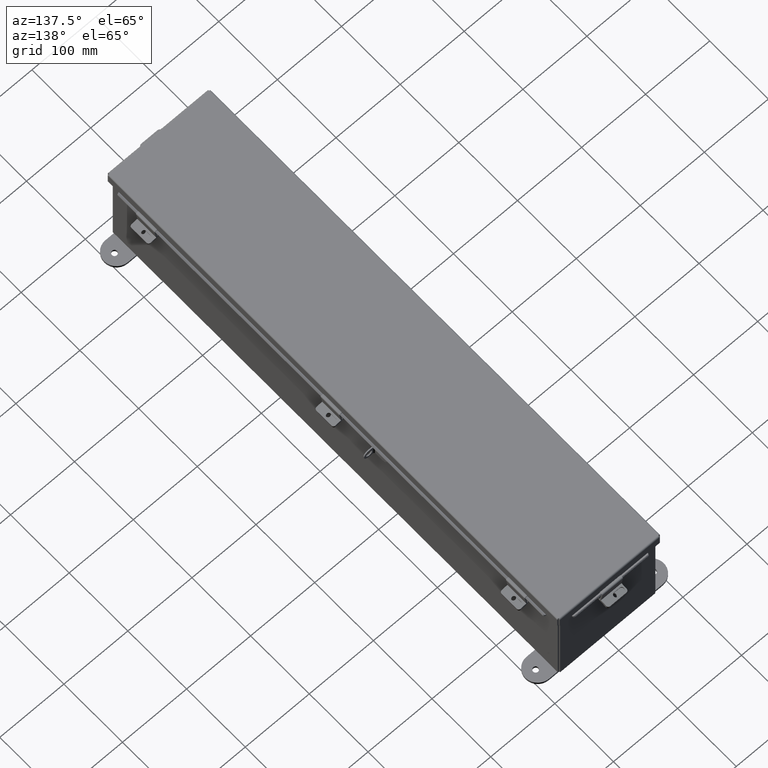
[diagram: clean part render]
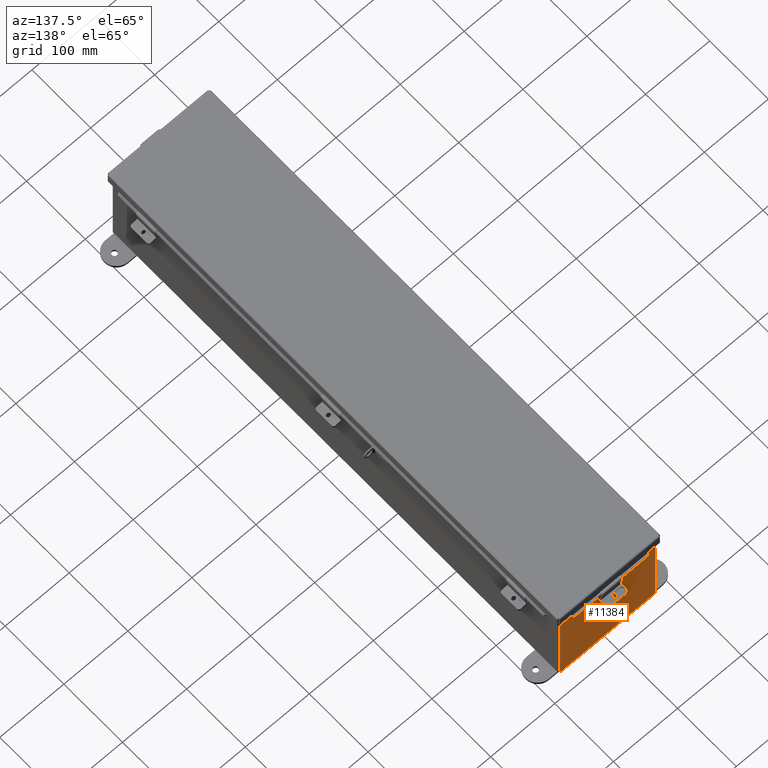
[diagram: same view with one face highlighted and labeled with its STEP entity id]
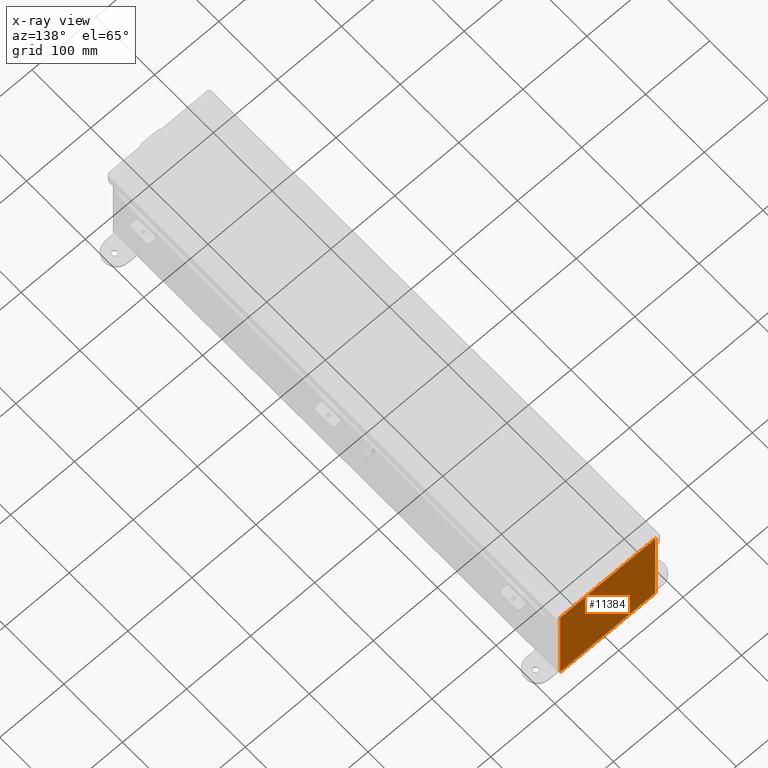
[diagram: x-ray of the same camera — body ghosted, the highlighted face saturated]
A machine part, auxiliary view. The second image highlights one B-rep face of the part: STEP entity #11384.
The next image is the same camera in x-ray: the body ghosted, the highlighted face saturated — about 0% of this face is hidden behind the body in this view.
In plain terms, the highlighted planar face has unit normal (0, -1, 0).
Its self-contained STEP definition (entity closure, byte-faithful):
#120 = CARTESIAN_POINT ( 'NONE',  ( 2.582300000000000500, 0.0000000000000000000, 0.0000000000000000000 ) ) ;
#221 = VECTOR ( 'NONE', #16317, 39.37007874015748100 ) ;
#493 = EDGE_CURVE ( 'NONE', #21553, #16720, #11723, .T. ) ;
#574 = DIRECTION ( 'NONE',  ( 0.0000000000000000000, 0.0000000000000000000, -1.000000000000000000 ) ) ;
#623 = CARTESIAN_POINT ( 'NONE',  ( -2.582299999999999600, 0.0000000000000000000, 2.874949999999999700 ) ) ;
#873 = VERTEX_POINT ( 'NONE', #12515 ) ;
#1487 = VERTEX_POINT ( 'NONE', #4678 ) ;
#1512 = AXIS2_PLACEMENT_3D ( 'NONE', #20493, #24543, #12448 ) ;
#1712 = CARTESIAN_POINT ( 'NONE',  ( -2.619649999999999600, 0.0000000000000000000, 2.874949999999999700 ) ) ;
#2171 = CARTESIAN_POINT ( 'NONE',  ( -2.582299999999999600, 2.185478394931410600E-015, 2.912299999999998800 ) ) ;
#2353 = CARTESIAN_POINT ( 'NONE',  ( 2.582300000000000500, 0.0000000000000000000, 2.912299999999998800 ) ) ;
#2850 = VECTOR ( 'NONE', #4392, 39.37007874015748100 ) ;
#2958 = ORIENTED_EDGE ( 'NONE', *, *, #20572, .T. ) ;
#3122 = DIRECTION ( 'NONE',  ( 1.000000000000000000, 0.0000000000000000000, 0.0000000000000000000 ) ) ;
#4046 = CARTESIAN_POINT ( 'NONE',  ( -2.925299999999999600, 0.0000000000000000000, 2.925300000000000000 ) ) ;
#4078 = VERTEX_POINT ( 'NONE', #22051 ) ;
#4172 = DIRECTION ( 'NONE',  ( 0.0000000000000000000, 0.0000000000000000000, 1.000000000000000000 ) ) ;
#4216 = VERTEX_POINT ( 'NONE', #12528 ) ;
#4284 = PLANE ( 'NONE',  #1512 ) ;
#4371 = LINE ( 'NONE', #20654, #19888 ) ;
#4392 = DIRECTION ( 'NONE',  ( 0.0000000000000000000, 0.0000000000000000000, -1.000000000000000000 ) ) ;
#4530 = DIRECTION ( 'NONE',  ( 0.0000000000000000000, 0.0000000000000000000, -1.000000000000000000 ) ) ;
#4678 = CARTESIAN_POINT ( 'NONE',  ( 2.925300000000000500, 0.0000000000000000000, -2.925300000000000000 ) ) ;
#5363 = ORIENTED_EDGE ( 'NONE', *, *, #20993, .T. ) ;
#5405 = VERTEX_POINT ( 'NONE', #623 ) ;
#5560 = LINE ( 'NONE', #6100, #221 ) ;
#5647 = CIRCLE ( 'NONE', #24846, 0.01867500000000003900 ) ;
#5745 = ORIENTED_EDGE ( 'NONE', *, *, #20867, .T. ) ;
#5983 = LINE ( 'NONE', #4046, #16805 ) ;
#6100 = CARTESIAN_POINT ( 'NONE',  ( 2.619649999999969400, 0.0000000000000000000, -2.841121913410833900E-014 ) ) ;
#6354 = CARTESIAN_POINT ( 'NONE',  ( -2.619649999999999600, 0.0000000000000000000, 0.0000000000000000000 ) ) ;
#6730 = ORIENTED_EDGE ( 'NONE', *, *, #8424, .T. ) ;
#6869 = DIRECTION ( 'NONE',  ( -0.0000000000000000000, 1.000000000000000000, -0.0000000000000000000 ) ) ;
#6988 = ORIENTED_EDGE ( 'NONE', *, *, #493, .T. ) ;
#7512 = LINE ( 'NONE', #120, #23675 ) ;
#7550 = CARTESIAN_POINT ( 'NONE',  ( 2.925300000000000500, 0.0000000000000000000, 2.925300000000000000 ) ) ;
#7578 = VECTOR ( 'NONE', #20780, 39.37007874015748100 ) ;
#7822 = ORIENTED_EDGE ( 'NONE', *, *, #25958, .F. ) ;
#8199 = LINE ( 'NONE', #24648, #2850 ) ;
#8424 = EDGE_CURVE ( 'NONE', #1487, #8762, #14146, .T. ) ;
#8534 = EDGE_CURVE ( 'NONE', #16897, #873, #5560, .T. ) ;
#8575 = ORIENTED_EDGE ( 'NONE', *, *, #13001, .F. ) ;
#8697 = CARTESIAN_POINT ( 'NONE',  ( -2.925299999999999600, 0.0000000000000000000, 2.925300000000000000 ) ) ;
#8734 = VECTOR ( 'NONE', #9781, 39.37007874015748100 ) ;
#8762 = VERTEX_POINT ( 'NONE', #17101 ) ;
#9781 = DIRECTION ( 'NONE',  ( -1.000000000000000000, -0.0000000000000000000, -0.0000000000000000000 ) ) ;
#10289 = CARTESIAN_POINT ( 'NONE',  ( -2.925299999999999600, 0.0000000000000000000, 2.925300000000000000 ) ) ;
#10477 = CIRCLE ( 'NONE', #26051, 0.01867500000000003900 ) ;
#10723 = EDGE_CURVE ( 'NONE', #4216, #4078, #17488, .T. ) ;
#11384 = ADVANCED_FACE ( 'NONE', ( #19045 ), #4284, .F. ) ;
#11723 = LINE ( 'NONE', #13224, #15554 ) ;
#11948 = ORIENTED_EDGE ( 'NONE', *, *, #25488, .F. ) ;
#12448 = DIRECTION ( 'NONE',  ( 0.0000000000000000000, -0.0000000000000000000, -1.000000000000000000 ) ) ;
#12497 = DIRECTION ( 'NONE',  ( 0.0000000000000000000, 0.0000000000000000000, 1.000000000000000000 ) ) ;
#12515 = CARTESIAN_POINT ( 'NONE',  ( 2.619650000000000500, 0.0000000000000000000, 2.874949999999999700 ) ) ;
#12528 = CARTESIAN_POINT ( 'NONE',  ( -2.925299999999999600, 0.0000000000000000000, 2.925300000000000000 ) ) ;
#12686 = DIRECTION ( 'NONE',  ( -0.0000000000000000000, 1.000000000000000000, -0.0000000000000000000 ) ) ;
#12754 = VECTOR ( 'NONE', #22440, 39.37007874015748100 ) ;
#12885 = EDGE_CURVE ( 'NONE', #15737, #16720, #7512, .T. ) ;
#13001 = EDGE_CURVE ( 'NONE', #21553, #5405, #4371, .T. ) ;
#13224 = CARTESIAN_POINT ( 'NONE',  ( -2.582299999999999600, 2.185478394931410600E-015, 2.912299999999998800 ) ) ;
#14146 = LINE ( 'NONE', #21952, #8734 ) ;
#14609 = LINE ( 'NONE', #6354, #25341 ) ;
#15073 = ORIENTED_EDGE ( 'NONE', *, *, #10723, .T. ) ;
#15092 = CARTESIAN_POINT ( 'NONE',  ( 2.619650000000000500, 0.0000000000000000000, 2.925300000000000000 ) ) ;
#15241 = VERTEX_POINT ( 'NONE', #1712 ) ;
#15480 = CARTESIAN_POINT ( 'NONE',  ( 2.582300000000000500, 0.0000000000000000000, 2.874949999999999700 ) ) ;
#15554 = VECTOR ( 'NONE', #3122, 39.37007874015748100 ) ;
#15737 = VERTEX_POINT ( 'NONE', #15480 ) ;
#16317 = DIRECTION ( 'NONE',  ( -1.085143195099989400E-014, 0.0000000000000000000, -1.000000000000000000 ) ) ;
#16720 = VERTEX_POINT ( 'NONE', #2353 ) ;
#16805 = VECTOR ( 'NONE', #18231, 39.37007874015748100 ) ;
#16862 = ORIENTED_EDGE ( 'NONE', *, *, #8534, .F. ) ;
#16897 = VERTEX_POINT ( 'NONE', #15092 ) ;
#17101 = CARTESIAN_POINT ( 'NONE',  ( -2.925299999999999600, 0.0000000000000000000, -2.925300000000000000 ) ) ;
#17488 = LINE ( 'NONE', #10289, #12754 ) ;
#18231 = DIRECTION ( 'NONE',  ( -0.0000000000000000000, -0.0000000000000000000, 1.000000000000000000 ) ) ;
#18393 = LINE ( 'NONE', #8697, #7578 ) ;
#19015 = CARTESIAN_POINT ( 'NONE',  ( 2.600975000000000500, 0.0000000000000000000, 2.874949999999999700 ) ) ;
#19045 = FACE_OUTER_BOUND ( 'NONE', #23213, .T. ) ;
#19888 = VECTOR ( 'NONE', #4530, 39.37007874015748100 ) ;
#20236 = VERTEX_POINT ( 'NONE', #7550 ) ;
#20493 = CARTESIAN_POINT ( 'NONE',  ( 0.0000000000000000000, 0.0000000000000000000, 0.0000000000000000000 ) ) ;
#20572 = EDGE_CURVE ( 'NONE', #16897, #20236, #18393, .T. ) ;
#20654 = CARTESIAN_POINT ( 'NONE',  ( -2.582299999999999600, 0.0000000000000000000, 0.0000000000000000000 ) ) ;
#20780 = DIRECTION ( 'NONE',  ( 1.000000000000000000, 0.0000000000000000000, 0.0000000000000000000 ) ) ;
#20867 = EDGE_CURVE ( 'NONE', #8762, #4216, #5983, .T. ) ;
#20993 = EDGE_CURVE ( 'NONE', #20236, #1487, #8199, .T. ) ;
#21054 = DIRECTION ( 'NONE',  ( 0.0000000000000000000, 0.0000000000000000000, -1.000000000000000000 ) ) ;
#21101 = EDGE_CURVE ( 'NONE', #873, #15737, #5647, .T. ) ;
#21553 = VERTEX_POINT ( 'NONE', #2171 ) ;
#21661 = ORIENTED_EDGE ( 'NONE', *, *, #12885, .F. ) ;
#21952 = CARTESIAN_POINT ( 'NONE',  ( -2.925299999999999600, 0.0000000000000000000, -2.925300000000000000 ) ) ;
#22051 = CARTESIAN_POINT ( 'NONE',  ( -2.619649999999999600, 0.0000000000000000000, 2.925300000000000000 ) ) ;
#22440 = DIRECTION ( 'NONE',  ( 1.000000000000000000, 0.0000000000000000000, 0.0000000000000000000 ) ) ;
#23213 = EDGE_LOOP ( 'NONE', ( #7822, #11948, #8575, #6988, #21661, #24527, #16862, #2958, #5363, #6730, #5745, #15073 ) ) ;
#23675 = VECTOR ( 'NONE', #4172, 39.37007874015748100 ) ;
#24527 = ORIENTED_EDGE ( 'NONE', *, *, #21101, .F. ) ;
#24543 = DIRECTION ( 'NONE',  ( 0.0000000000000000000, -1.000000000000000000, 0.0000000000000000000 ) ) ;
#24648 = CARTESIAN_POINT ( 'NONE',  ( 2.925300000000000500, 0.0000000000000000000, 2.925300000000000000 ) ) ;
#24788 = CARTESIAN_POINT ( 'NONE',  ( -2.600974999999999600, 0.0000000000000000000, 2.874949999999999700 ) ) ;
#24846 = AXIS2_PLACEMENT_3D ( 'NONE', #19015, #6869, #21054 ) ;
#25341 = VECTOR ( 'NONE', #12497, 39.37007874015748100 ) ;
#25488 = EDGE_CURVE ( 'NONE', #5405, #15241, #10477, .T. ) ;
#25958 = EDGE_CURVE ( 'NONE', #15241, #4078, #14609, .T. ) ;
#26051 = AXIS2_PLACEMENT_3D ( 'NONE', #24788, #12686, #574 ) ;